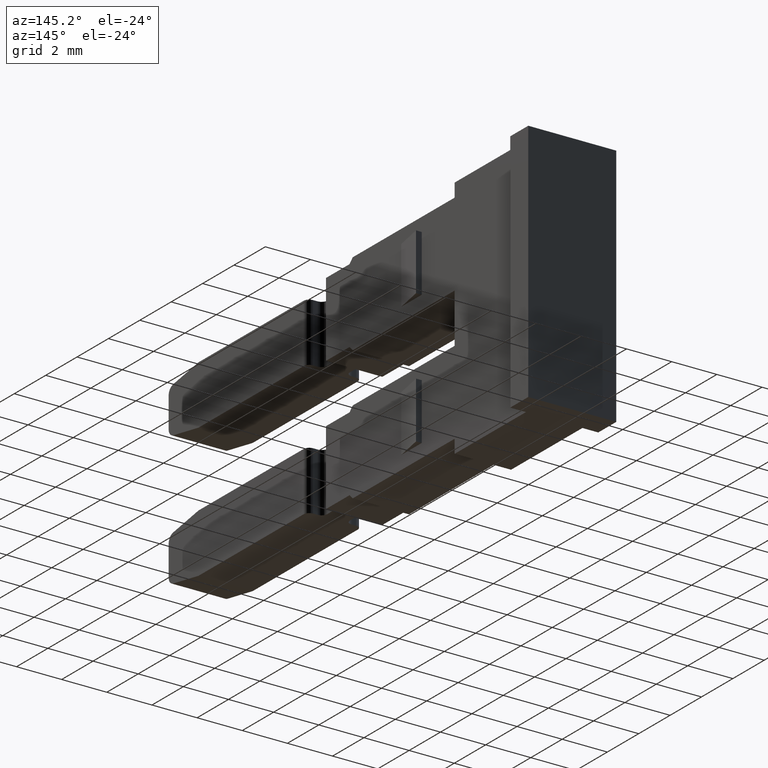
[diagram: clean part render]
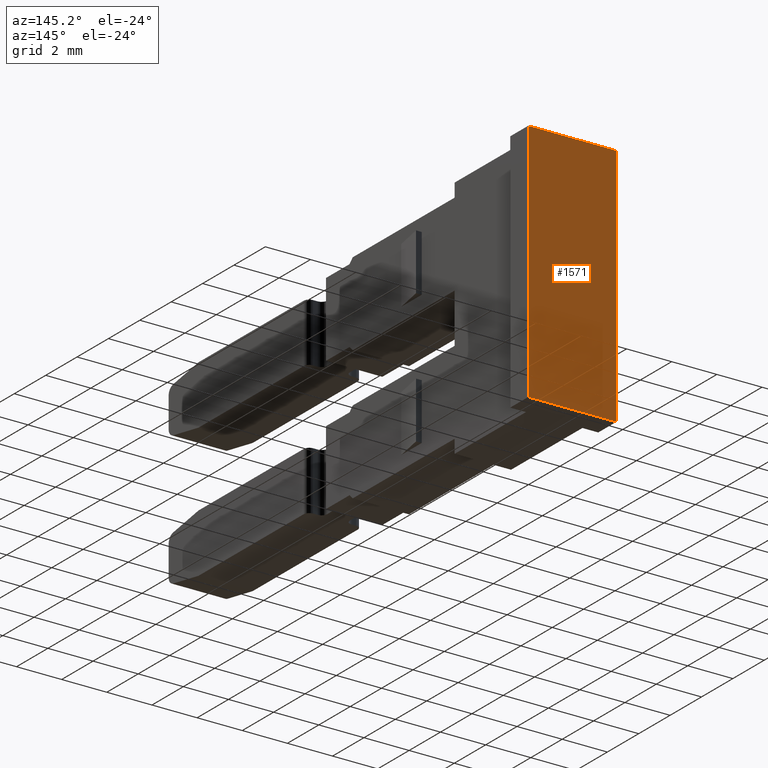
[diagram: same view with one face highlighted and labeled with its STEP entity id]
A machine part, auxiliary view. The second image highlights one B-rep face of the part: STEP entity #1571.
In plain terms, the highlighted planar face has unit normal (-0, 1, 0).
Its self-contained STEP definition (entity closure, byte-faithful):
#9 = VECTOR ( 'NONE', #2602, 1000.000000000000000 ) ;
#13 = VECTOR ( 'NONE', #2539, 1000.000000000000000 ) ;
#244 = AXIS2_PLACEMENT_3D ( 'NONE', #2148, #2180, #2181 ) ;
#379 = VECTOR ( 'NONE', #2489, 1000.000000000000000 ) ;
#392 = VECTOR ( 'NONE', #2576, 1000.000000000000000 ) ;
#462 = VERTEX_POINT ( 'NONE', #1207 ) ;
#754 = ORIENTED_EDGE ( 'NONE', *, *, #1367, .T. ) ;
#771 = ORIENTED_EDGE ( 'NONE', *, *, #1377, .F. ) ;
#792 = ORIENTED_EDGE ( 'NONE', *, *, #1358, .T. ) ;
#816 = ORIENTED_EDGE ( 'NONE', *, *, #1339, .F. ) ;
#941 = EDGE_LOOP ( 'NONE', ( #792, #771, #754, #816 ) ) ;
#1207 = CARTESIAN_POINT ( 'NONE',  ( 1456.068071211366000, 1009.692679537514100, -77.04999999999267900 ) ) ;
#1257 = VERTEX_POINT ( 'NONE', #2329 ) ;
#1267 = VERTEX_POINT ( 'NONE', #2342 ) ;
#1278 = VERTEX_POINT ( 'NONE', #2331 ) ;
#1339 = EDGE_CURVE ( 'NONE', #1257, #1278, #2478, .T. ) ;
#1358 = EDGE_CURVE ( 'NONE', #1257, #462, #2495, .T. ) ;
#1367 = EDGE_CURVE ( 'NONE', #1267, #1278, #2548, .T. ) ;
#1377 = EDGE_CURVE ( 'NONE', #1267, #462, #2613, .T. ) ;
#1571 = ADVANCED_FACE ( 'NONE', ( #2144 ), #2145, .T. ) ;
#2144 = FACE_OUTER_BOUND ( 'NONE', #941, .T. ) ;
#2145 = PLANE ( 'NONE',  #244 ) ;
#2148 = CARTESIAN_POINT ( 'NONE',  ( 1459.718071211365900, 1009.692679537520100, -112.3308473691034000 ) ) ;
#2180 = DIRECTION ( 'NONE',  ( -2.625242473304434000E-014, 1.000000000000000000, 6.606529101504750500E-015 ) ) ;
#2181 = DIRECTION ( 'NONE',  ( -1.000000000000000000, -2.625242473304434000E-014, 0.0000000000000000000 ) ) ;
#2329 = CARTESIAN_POINT ( 'NONE',  ( 1456.068071211366000, 1009.692679537514100, -87.84999999998744600 ) ) ;
#2331 = CARTESIAN_POINT ( 'NONE',  ( 1459.968071211366100, 1009.692679537514100, -87.84999999998740300 ) ) ;
#2342 = CARTESIAN_POINT ( 'NONE',  ( 1459.968071211366100, 1009.692679537514100, -77.04999999999265000 ) ) ;
#2458 = CARTESIAN_POINT ( 'NONE',  ( 1457.871626077922200, 1009.692679537512000, -87.84999999998744600 ) ) ;
#2478 = LINE ( 'NONE', #2458, #379 ) ;
#2489 = DIRECTION ( 'NONE',  ( 1.000000000000000000, -1.591874026890570400E-028, -1.715124499443520100E-015 ) ) ;
#2495 = LINE ( 'NONE', #2545, #392 ) ;
#2539 = DIRECTION ( 'NONE',  ( -1.734374079839205100E-028, 6.606529101504750500E-015, -1.000000000000000000 ) ) ;
#2545 = CARTESIAN_POINT ( 'NONE',  ( 1456.068071211366000, 1009.692679537520100, -112.3308473691034000 ) ) ;
#2548 = LINE ( 'NONE', #2558, #13 ) ;
#2558 = CARTESIAN_POINT ( 'NONE',  ( 1459.968071211366100, 1009.692679537520100, -112.3308473691034000 ) ) ;
#2576 = DIRECTION ( 'NONE',  ( 1.734374079839205100E-028, -6.606529101504750500E-015, 1.000000000000000000 ) ) ;
#2595 = CARTESIAN_POINT ( 'NONE',  ( 1457.871626077922200, 1009.692679537512000, -77.04999999999265000 ) ) ;
#2602 = DIRECTION ( 'NONE',  ( -1.000000000000000000, 4.794056557034578200E-028, -5.145373498329340500E-015 ) ) ;
#2613 = LINE ( 'NONE', #2595, #9 ) ;